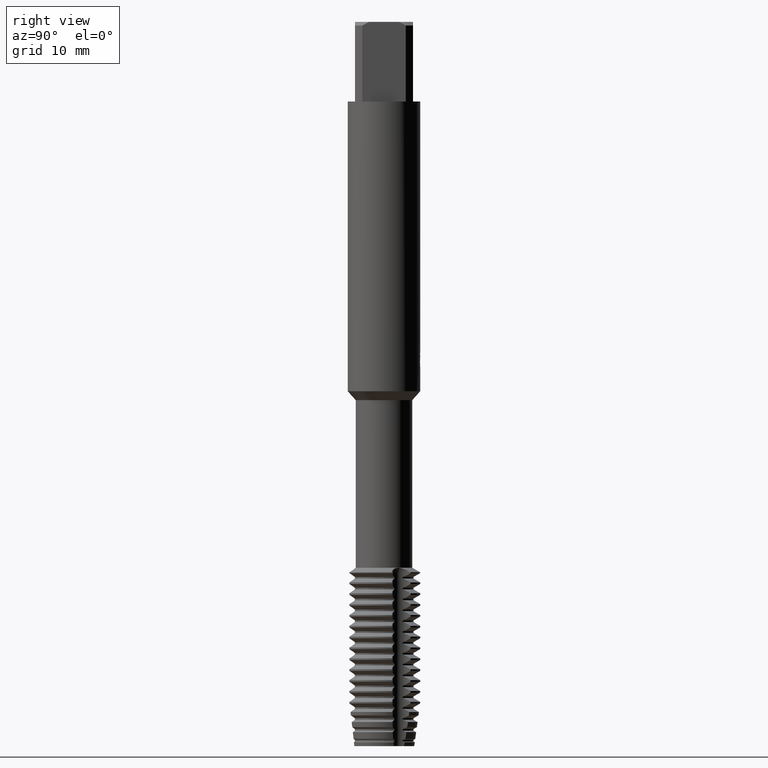
[diagram: clean part render]
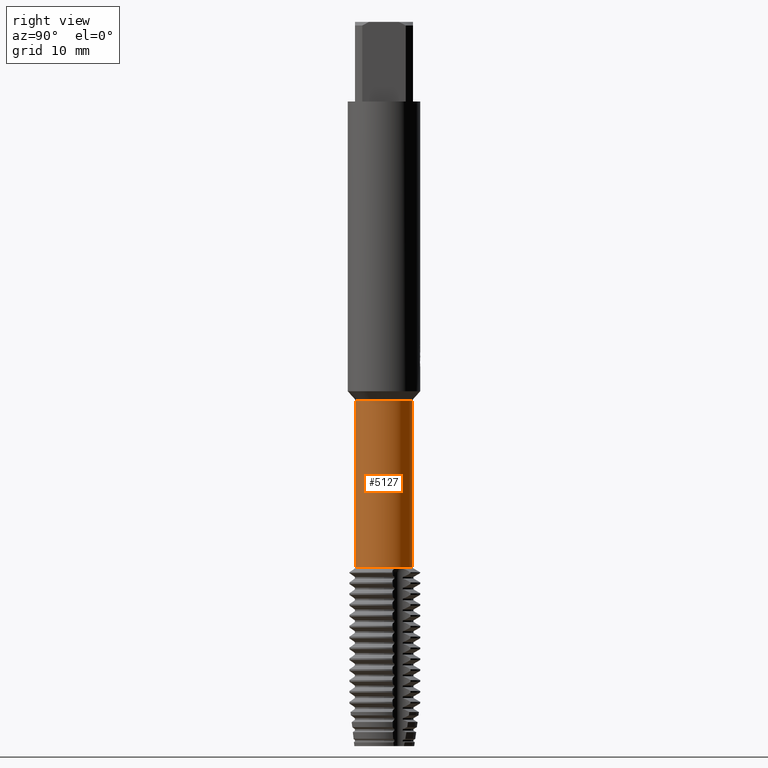
[diagram: same view with one face highlighted and labeled with its STEP entity id]
A machine part, right view. The second image highlights one B-rep face of the part: STEP entity #5127.
In plain terms, the highlighted cylindrical surface (edge-blend (fillet) strip) has radius 3.9 mm, axis along (-0, -0, 1).
Its self-contained STEP definition (entity closure, byte-faithful):
#2165=EDGE_CURVE('',#5823,#4285,#6248,.T.);
#2821=EDGE_CURVE('',#5823,#4629,#6973,.T.);
#3119=EDGE_CURVE('',#4629,#5247,#7295,.T.);
#4285=VERTEX_POINT('',#8551);
#4629=VERTEX_POINT('',#8923);
#4637=EDGE_CURVE('',#5247,#4285,#8931,.T.);
#5127=ADVANCED_FACE('',(#9474),#9475,.T.);
#5247=VERTEX_POINT('',#9603);
#5823=VERTEX_POINT('',#10234);
#6248=CIRCLE('',#10725,3.9);
#6973=LINE('',#11903,#11904);
#7295=CIRCLE('',#12469,3.9);
#8551=CARTESIAN_POINT('',(4.77596477990727E-016,-3.9,-52.23070893));
#8923=CARTESIAN_POINT('',(0.0,3.9,-75.3649147038914));
#8931=LINE('',#15416,#15417);
#9474=FACE_OUTER_BOUND('',#16331,.T.);
#9475=CYLINDRICAL_SURFACE('',#16332,3.9);
#9603=CARTESIAN_POINT('',(4.77596477990727E-016,-3.9,-75.3649147038914));
#10234=CARTESIAN_POINT('',(0.0,3.9,-52.23070893));
#10725=AXIS2_PLACEMENT_3D('',#18485,#18486,#18487);
#11903=CARTESIAN_POINT('',(-4.77596477990727E-016,3.9,-63.7978118169457));
#11904=VECTOR('',#19316,1.0);
#12469=AXIS2_PLACEMENT_3D('',#19623,#19624,#19625);
#15416=CARTESIAN_POINT('',(4.77596477990727E-016,-3.9,-63.7978118169457));
#15417=VECTOR('',#21503,1.0);
#16331=EDGE_LOOP('',(#22142,#22143,#22144,#22145));
#16332=AXIS2_PLACEMENT_3D('',#22146,#22147,#22148);
#18485=CARTESIAN_POINT('',(0.0,0.0,-52.23070893));
#18486=DIRECTION('',(0.0,0.0,-1.0));
#18487=DIRECTION('',(0.0,1.0,0.0));
#19316=DIRECTION('',(0.0,0.0,-1.0));
#19623=CARTESIAN_POINT('',(0.0,0.0,-75.3649147038914));
#19624=DIRECTION('',(0.0,0.0,-1.0));
#19625=DIRECTION('',(0.0,1.0,0.0));
#21503=DIRECTION('',(-0.0,-0.0,1.0));
#22142=ORIENTED_EDGE('',*,*,#2821,.F.);
#22143=ORIENTED_EDGE('',*,*,#2165,.T.);
#22144=ORIENTED_EDGE('',*,*,#4637,.F.);
#22145=ORIENTED_EDGE('',*,*,#3119,.F.);
#22146=CARTESIAN_POINT('',(0.0,0.0,-63.7978118169457));
#22147=DIRECTION('',(-0.0,-0.0,1.0));
#22148=DIRECTION('',(0.0,1.0,0.0));